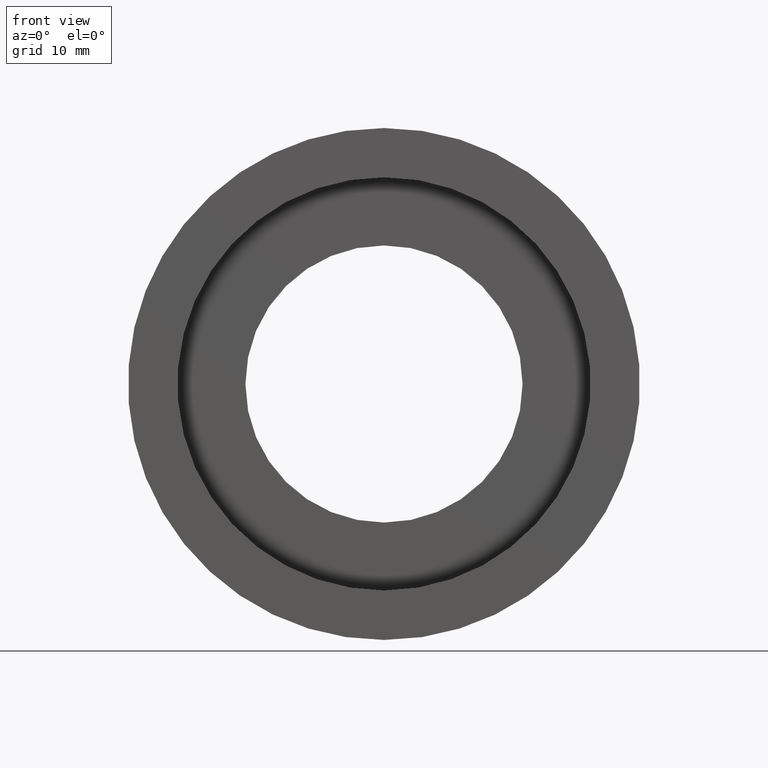
[diagram: clean part render]
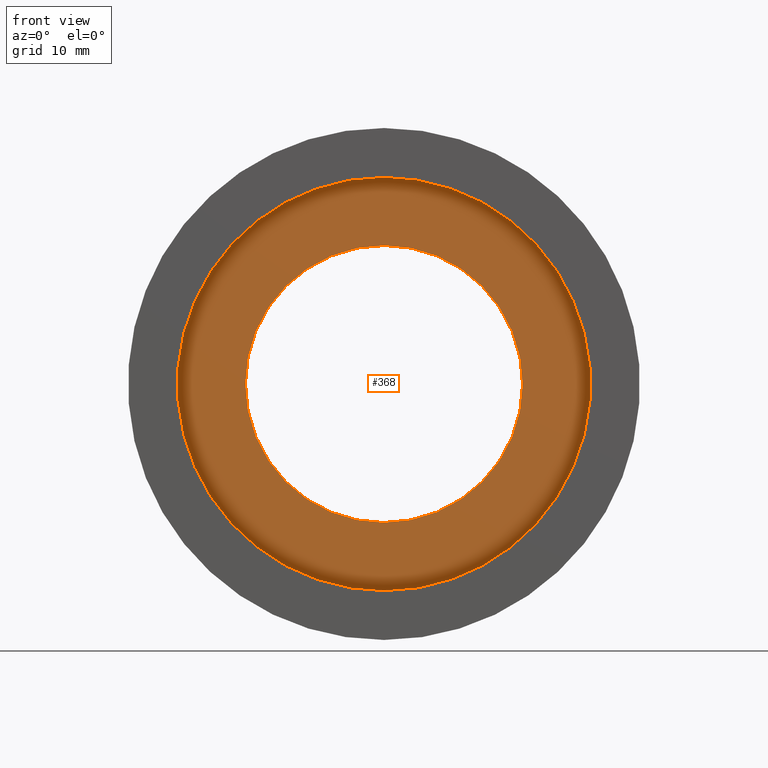
[diagram: same view with one face highlighted and labeled with its STEP entity id]
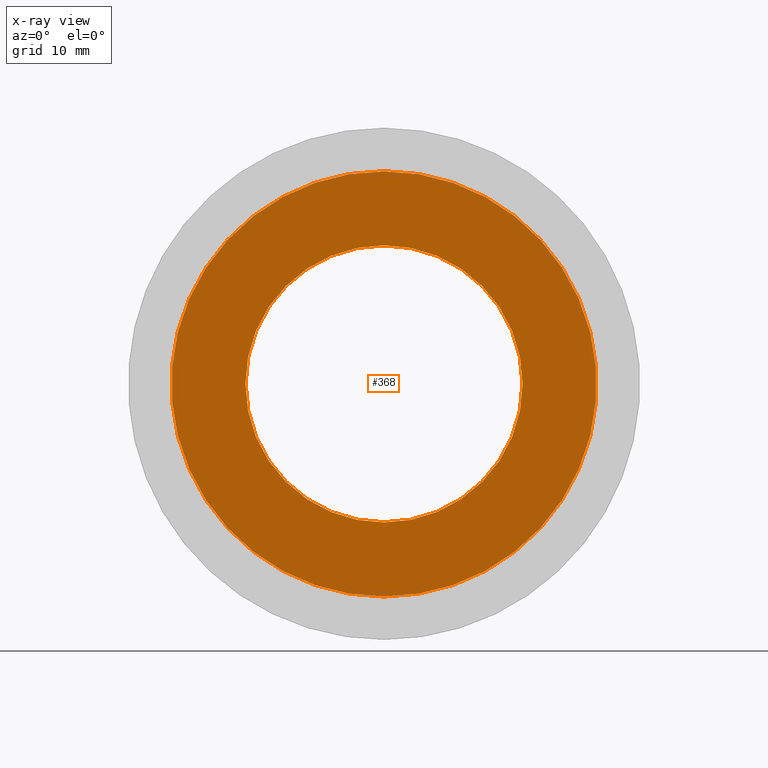
[diagram: x-ray of the same camera — body ghosted, the highlighted face saturated]
A machine part, front view. The second image highlights one B-rep face of the part: STEP entity #368.
The next image is the same camera in x-ray: the body ghosted, the highlighted face saturated — about 0% of this face is hidden behind the body in this view.
In plain terms, the highlighted planar face has unit normal (-0, 1, 0).
Its self-contained STEP definition (entity closure, byte-faithful):
#23 = DIRECTION ( 'NONE',  ( 0.0000000000000000000, 0.0000000000000000000, 1.000000000000000000 ) ) ;
#39 = EDGE_CURVE ( 'NONE', #133, #322, #307, .T. ) ;
#51 = EDGE_CURVE ( 'NONE', #100, #169, #417, .T. ) ;
#71 = EDGE_CURVE ( 'NONE', #322, #133, #395, .T. ) ;
#80 = PLANE ( 'NONE',  #375 ) ;
#92 = EDGE_LOOP ( 'NONE', ( #112, #301 ) ) ;
#96 = AXIS2_PLACEMENT_3D ( 'NONE', #392, #198, #399 ) ;
#100 = VERTEX_POINT ( 'NONE', #206 ) ;
#112 = ORIENTED_EDGE ( 'NONE', *, *, #39, .F. ) ;
#132 = DIRECTION ( 'NONE',  ( 0.0000000000000000000, 0.0000000000000000000, 1.000000000000000000 ) ) ;
#133 = VERTEX_POINT ( 'NONE', #239 ) ;
#153 = CARTESIAN_POINT ( 'NONE',  ( 1.683889348827611400E-015, 5.499999999999998200, -13.75000000000000500 ) ) ;
#160 = DIRECTION ( 'NONE',  ( -0.0000000000000000000, 1.000000000000000000, -0.0000000000000000000 ) ) ;
#169 = VERTEX_POINT ( 'NONE', #153 ) ;
#183 = FACE_OUTER_BOUND ( 'NONE', #92, .T. ) ;
#188 = AXIS2_PLACEMENT_3D ( 'NONE', #289, #160, #23 ) ;
#190 = CARTESIAN_POINT ( 'NONE',  ( 0.0000000000000000000, 5.499999999999998200, 0.0000000000000000000 ) ) ;
#198 = DIRECTION ( 'NONE',  ( -0.0000000000000000000, 1.000000000000000000, -0.0000000000000000000 ) ) ;
#206 = CARTESIAN_POINT ( 'NONE',  ( 0.0000000000000000000, 5.499999999999998200, 13.75000000000000500 ) ) ;
#235 = ORIENTED_EDGE ( 'NONE', *, *, #313, .T. ) ;
#239 = CARTESIAN_POINT ( 'NONE',  ( 0.0000000000000000000, 5.499999999999998200, 21.10000000000000900 ) ) ;
#251 = DIRECTION ( 'NONE',  ( -0.0000000000000000000, 1.000000000000000000, -0.0000000000000000000 ) ) ;
#253 = EDGE_LOOP ( 'NONE', ( #290, #235 ) ) ;
#281 = AXIS2_PLACEMENT_3D ( 'NONE', #347, #251, #132 ) ;
#289 = CARTESIAN_POINT ( 'NONE',  ( 0.0000000000000000000, 5.499999999999998200, 0.0000000000000000000 ) ) ;
#290 = ORIENTED_EDGE ( 'NONE', *, *, #51, .T. ) ;
#295 = FACE_BOUND ( 'NONE', #253, .T. ) ;
#296 = DIRECTION ( 'NONE',  ( -0.0000000000000000000, 1.000000000000000000, 0.0000000000000000000 ) ) ;
#297 = DIRECTION ( 'NONE',  ( 0.0000000000000000000, 0.0000000000000000000, 1.000000000000000000 ) ) ;
#301 = ORIENTED_EDGE ( 'NONE', *, *, #71, .F. ) ;
#307 = CIRCLE ( 'NONE', #281, 21.10000000000000900 ) ;
#309 = AXIS2_PLACEMENT_3D ( 'NONE', #190, #404, #297 ) ;
#313 = EDGE_CURVE ( 'NONE', #169, #100, #390, .T. ) ;
#322 = VERTEX_POINT ( 'NONE', #367 ) ;
#326 = CARTESIAN_POINT ( 'NONE',  ( 21.10000000000000900, 5.499999999999998200, 0.0000000000000000000 ) ) ;
#346 = DIRECTION ( 'NONE',  ( 0.0000000000000000000, 0.0000000000000000000, 1.000000000000000000 ) ) ;
#347 = CARTESIAN_POINT ( 'NONE',  ( 0.0000000000000000000, 5.499999999999998200, 0.0000000000000000000 ) ) ;
#367 = CARTESIAN_POINT ( 'NONE',  ( 2.584004746200916200E-015, 5.499999999999998200, -21.10000000000000900 ) ) ;
#368 = ADVANCED_FACE ( 'NONE', ( #183, #295 ), #80, .F. ) ;
#375 = AXIS2_PLACEMENT_3D ( 'NONE', #326, #296, #346 ) ;
#390 = CIRCLE ( 'NONE', #96, 13.75000000000000500 ) ;
#392 = CARTESIAN_POINT ( 'NONE',  ( 0.0000000000000000000, 5.499999999999998200, 0.0000000000000000000 ) ) ;
#395 = CIRCLE ( 'NONE', #309, 21.10000000000000900 ) ;
#399 = DIRECTION ( 'NONE',  ( 0.0000000000000000000, 0.0000000000000000000, 1.000000000000000000 ) ) ;
#404 = DIRECTION ( 'NONE',  ( -0.0000000000000000000, 1.000000000000000000, -0.0000000000000000000 ) ) ;
#417 = CIRCLE ( 'NONE', #188, 13.75000000000000500 ) ;